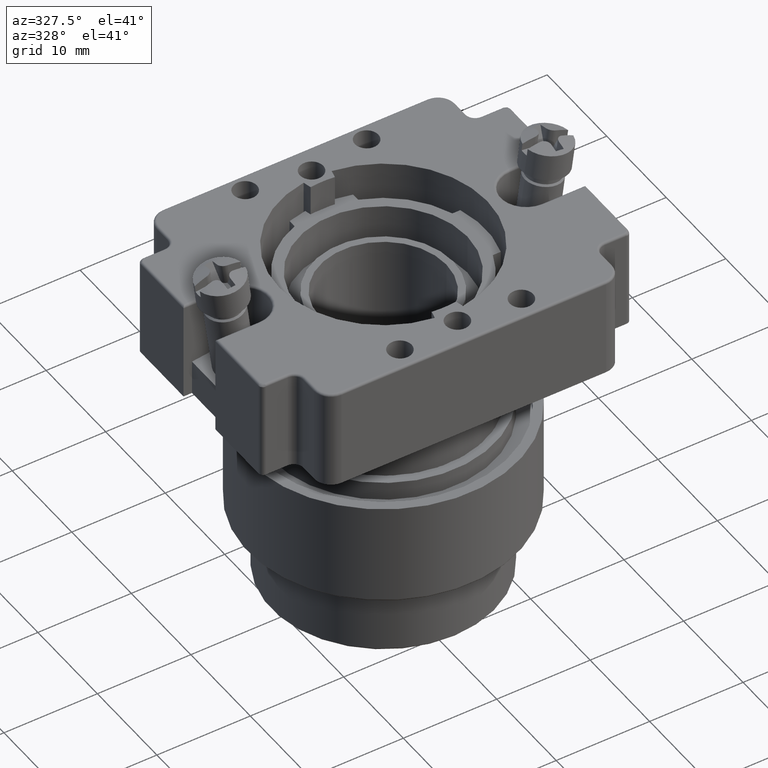
[diagram: clean part render]
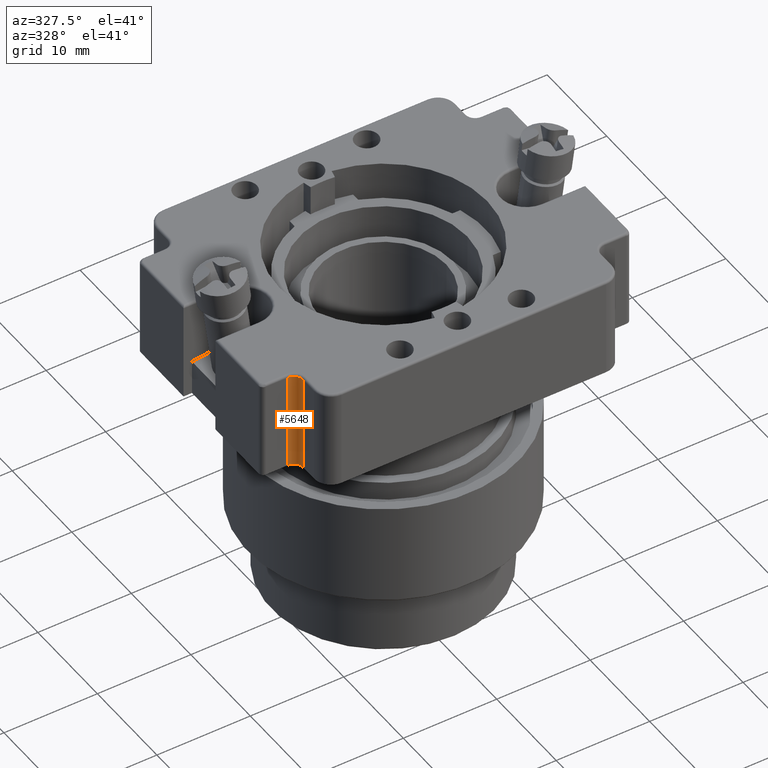
[diagram: same view with one face highlighted and labeled with its STEP entity id]
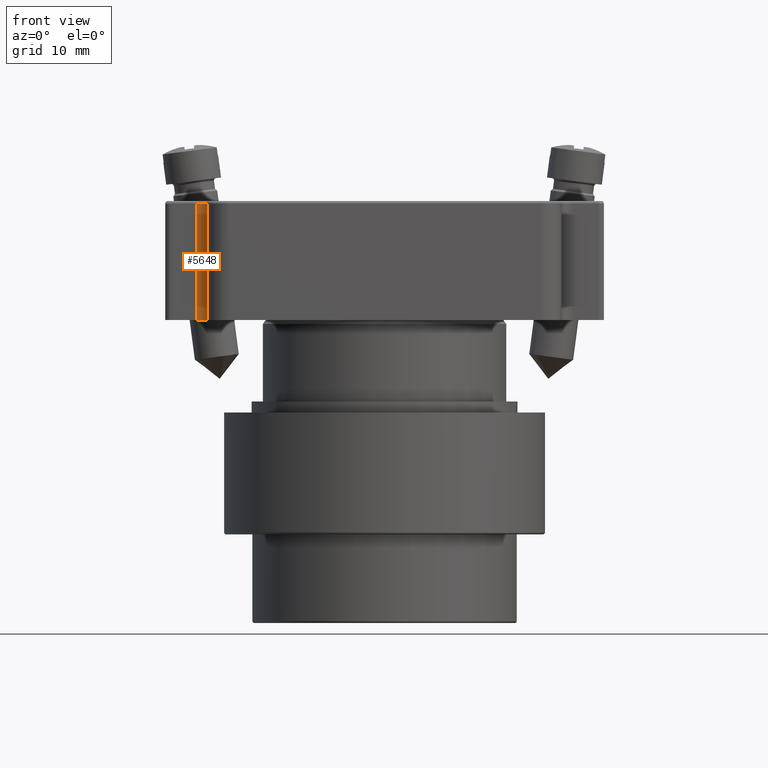
[diagram: same view with one face highlighted and labeled with its STEP entity id]
A machine part, auxiliary view. The second image highlights one B-rep face of the part: STEP entity #5648.
A second angle (front view) of the same face is appended — the face is thin or edge-on in the first view.
In plain terms, the highlighted cylindrical surface (edge-blend (fillet) strip) has radius 1 mm, axis along (0, 0, 1).
Its self-contained STEP definition (entity closure, byte-faithful):
#379=CARTESIAN_POINT('',(-15.132780308276105,-1.232135171842448,10.500000000000000));
#380=VERTEX_POINT('',#379);
#445=CARTESIAN_POINT('',(-16.132780308276104,-0.232135171842447,10.500000000000000));
#446=VERTEX_POINT('',#445);
#454=CARTESIAN_POINT('',(-16.132780308276104,-1.232135171842448,10.500000000000000));
#455=DIRECTION('',(0.0,0.0,-1.000000000000000));
#456=DIRECTION('',(0.707106781186548,0.707106781186547,0.0));
#457=AXIS2_PLACEMENT_3D('',#454,#455,#456);
#458=CIRCLE('',#457,1.000000000000003);
#459=EDGE_CURVE('',#446,#380,#458,.T.);
#4178=CARTESIAN_POINT('',(-15.132780308276105,-1.232135171842448,0.0));
#4179=VERTEX_POINT('',#4178);
#4186=CARTESIAN_POINT('',(-16.132780308276104,-0.232135171842447,0.0));
#4187=VERTEX_POINT('',#4186);
#4188=CARTESIAN_POINT('',(-16.132780308276104,-1.232135171842448,0.0));
#4189=DIRECTION('',(0.0,0.0,-1.0));
#4190=DIRECTION('',(-1.0,0.0,0.0));
#4191=AXIS2_PLACEMENT_3D('',#4188,#4189,#4190);
#4192=CIRCLE('',#4191,1.000000000000003);
#4193=EDGE_CURVE('',#4187,#4179,#4192,.T.);
#5621=CARTESIAN_POINT('',(-15.132780308276105,-1.232135171842448,0.0));
#5622=DIRECTION('',(0.0,0.0,1.0));
#5623=VECTOR('',#5622,10.500000000000000);
#5624=LINE('',#5621,#5623);
#5625=EDGE_CURVE('',#4179,#380,#5624,.T.);
#5632=CARTESIAN_POINT('',(-16.132780308276104,-1.232135171842448,0.0));
#5633=DIRECTION('',(0.0,0.0,1.0));
#5634=DIRECTION('',(-1.0,0.0,0.0));
#5635=AXIS2_PLACEMENT_3D('',#5632,#5633,#5634);
#5636=CYLINDRICAL_SURFACE('',#5635,1.000000000000003);
#5637=ORIENTED_EDGE('',*,*,#459,.F.);
#5638=CARTESIAN_POINT('',(-16.132780308276104,-0.232135171842447,0.0));
#5639=DIRECTION('',(0.0,0.0,1.0));
#5640=VECTOR('',#5639,10.500000000000000);
#5641=LINE('',#5638,#5640);
#5642=EDGE_CURVE('',#4187,#446,#5641,.T.);
#5643=ORIENTED_EDGE('',*,*,#5642,.F.);
#5644=ORIENTED_EDGE('',*,*,#4193,.T.);
#5645=ORIENTED_EDGE('',*,*,#5625,.T.);
#5646=EDGE_LOOP('',(#5637,#5643,#5644,#5645));
#5647=FACE_OUTER_BOUND('',#5646,.T.);
#5648=ADVANCED_FACE('',(#5647),#5636,.F.);